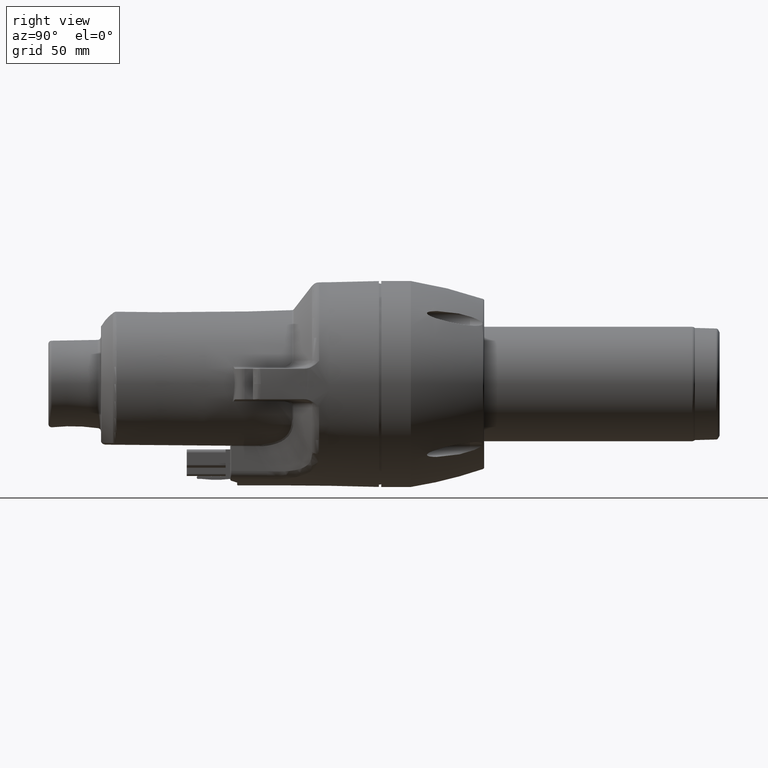
[diagram: clean part render]
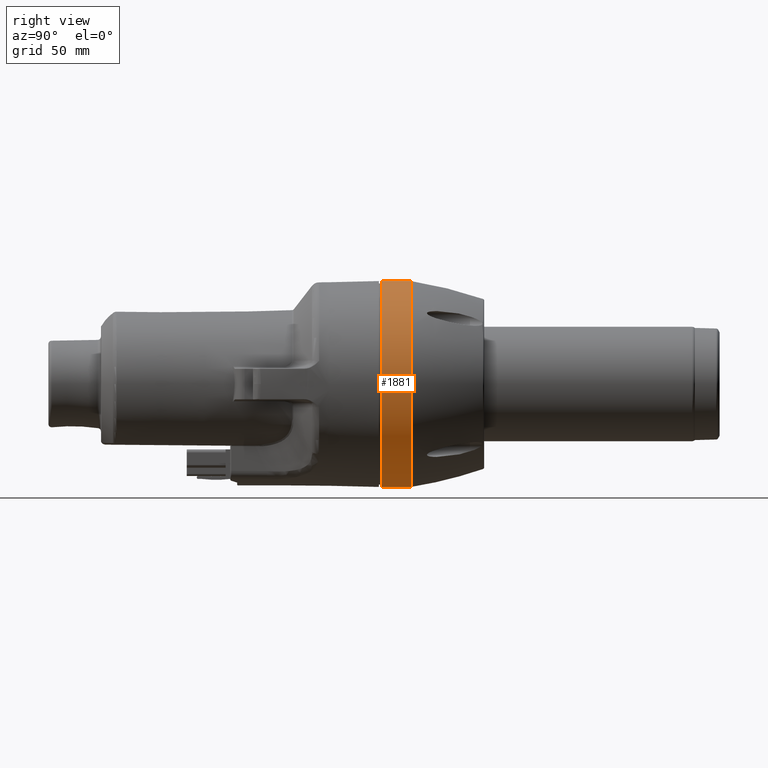
[diagram: same view with one face highlighted and labeled with its STEP entity id]
A machine part, right view. The second image highlights one B-rep face of the part: STEP entity #1881.
In plain terms, the highlighted cylindrical surface (bore or boss wall) has radius 45 mm, axis along (-0, -1, -0).
Its self-contained STEP definition (entity closure, byte-faithful):
#1881 = ADVANCED_FACE( '', ( #4223, #4224 ), #4225, .T. );
#4223 = FACE_OUTER_BOUND( '', #9436, .T. );
#4224 = FACE_OUTER_BOUND( '', #9437, .T. );
#4225 = CYLINDRICAL_SURFACE( '', #9438, 44.9999999999978 );
#9436 = EDGE_LOOP( '', ( #17385 ) );
#9437 = EDGE_LOOP( '', ( #17386 ) );
#9438 = AXIS2_PLACEMENT_3D( '', #17387, #17388, #17389 );
#17385 = ORIENTED_EDGE( '', *, *, #23079, .T. );
#17386 = ORIENTED_EDGE( '', *, *, #23561, .T. );
#17387 = CARTESIAN_POINT( '', ( -3.86412524451536E-011, 40.2999999999912, -4.11115073519542E-011 ) );
#17388 = DIRECTION( '', ( -0.000000000000000, -1.00000000000000, -0.000000000000000 ) );
#17389 = DIRECTION( '', ( 0.000000000000000, 0.000000000000000, 1.00000000000000 ) );
#23079 = EDGE_CURVE( '', #27750, #27750, #27751, .T. );
#23561 = EDGE_CURVE( '', #28433, #28433, #28434, .T. );
#27750 = VERTEX_POINT( '', #35642 );
#27751 = CIRCLE( '', #35643, 44.9999999999978 );
#28433 = VERTEX_POINT( '', #36810 );
#28434 = CIRCLE( '', #36811, 44.9999999999978 );
#35642 = CARTESIAN_POINT( '', ( -3.86464884805794E-011, -2.20000000000009, 44.9999999999567 ) );
#35643 = AXIS2_PLACEMENT_3D( '', #41321, #41322, #41323 );
#36810 = CARTESIAN_POINT( '', ( -3.86448868697364E-011, 10.8000000000000, 44.9999999999567 ) );
#36811 = AXIS2_PLACEMENT_3D( '', #42026, #42027, #42028 );
#41321 = CARTESIAN_POINT( '', ( -3.86464884805794E-011, -2.20000000000009, -4.10988168269162E-011 ) );
#41322 = DIRECTION( '', ( 0.000000000000000, 1.00000000000000, 0.000000000000000 ) );
#41323 = DIRECTION( '', ( 0.000000000000000, 0.000000000000000, 1.00000000000000 ) );
#42026 = CARTESIAN_POINT( '', ( -3.86448868697364E-011, 10.8000000000000, -4.11026986345704E-011 ) );
#42027 = DIRECTION( '', ( 0.000000000000000, -1.00000000000000, 0.000000000000000 ) );
#42028 = DIRECTION( '', ( 0.000000000000000, 0.000000000000000, 1.00000000000000 ) );